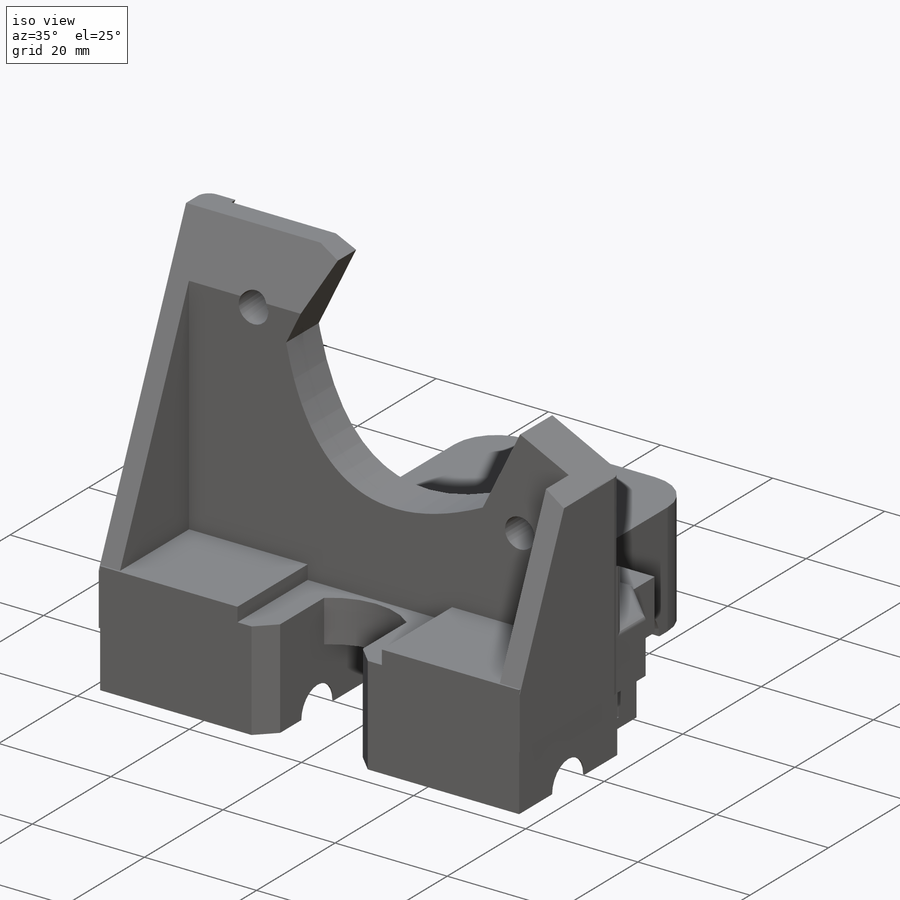
[diagram: iso view]
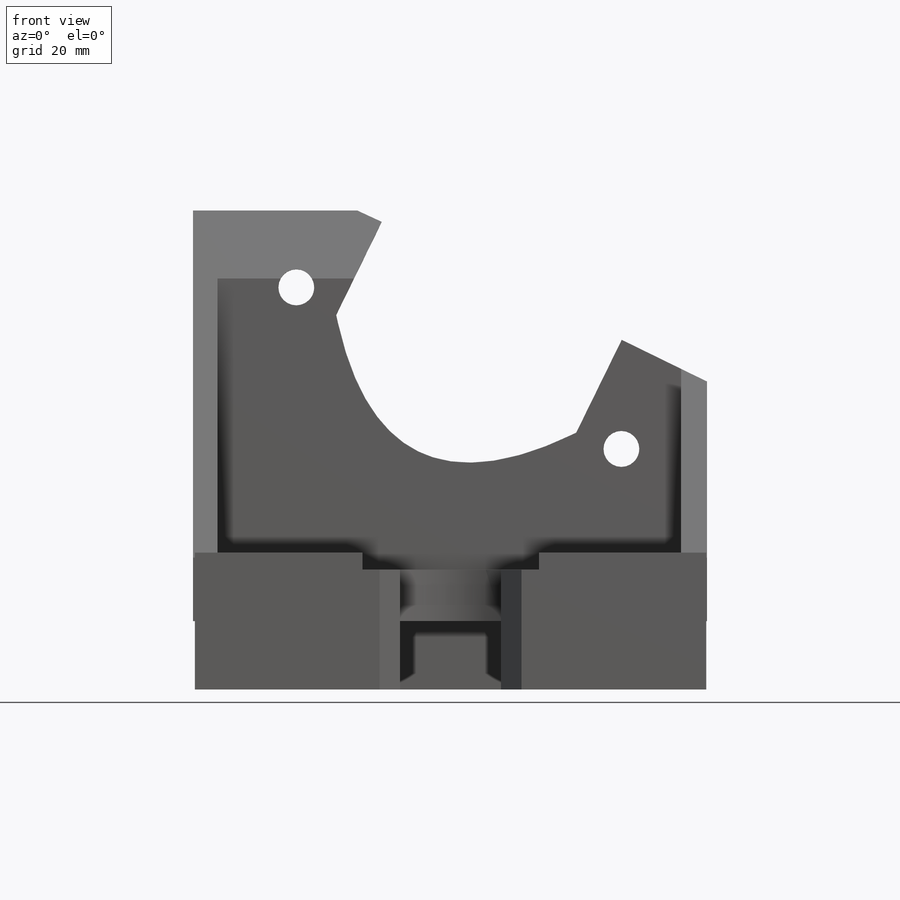
[diagram: front view]
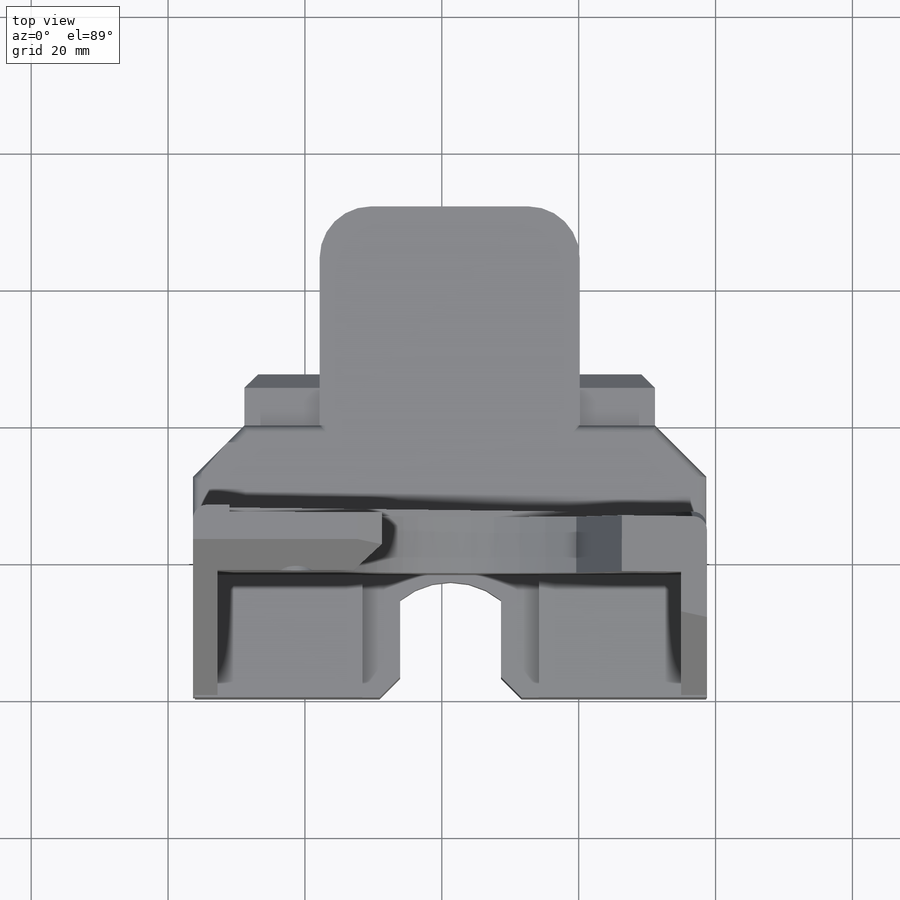
[diagram: top view]
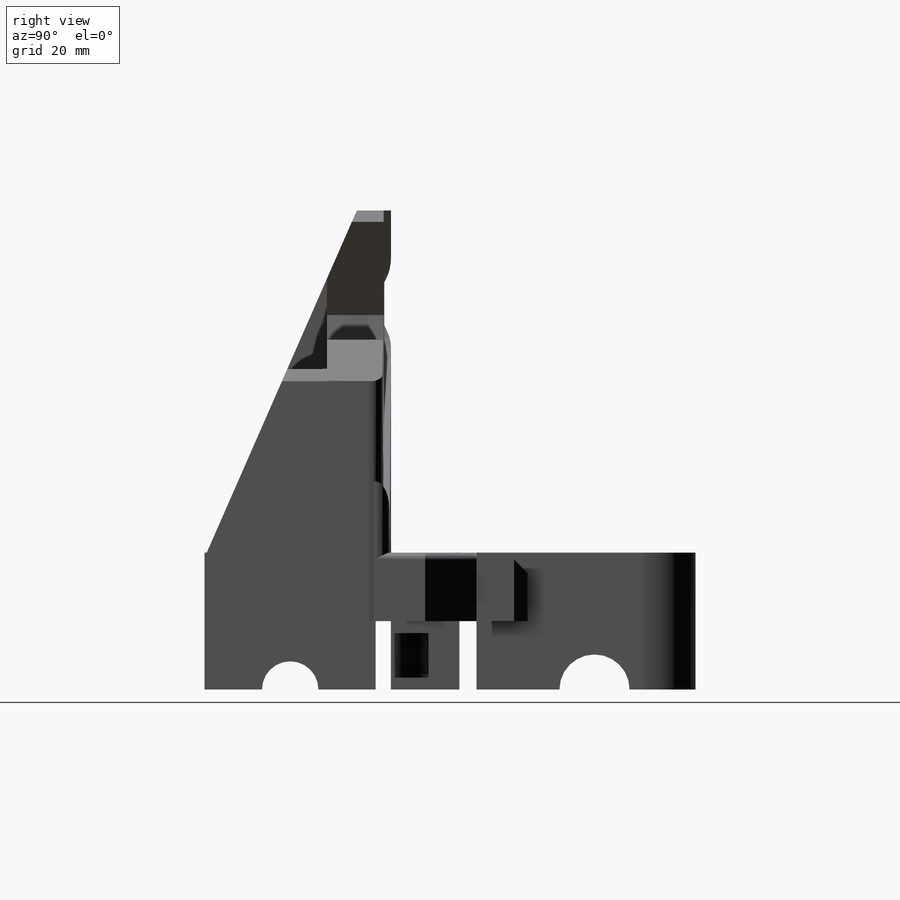
[diagram: right view]
SOLIDWORKS PART (.sldprt)
format: sldprt  version: not decoded by parser v0  size: 1,210,368 bytes
history: native  units: mm
features: sketch x35, cut_extrude x17, extrude x12, fillet x6, cut_revolve x6, chamfer x3, material x1 (+13 scaffold rows collapsed)
feature tree (93):
  scaffold x13  (default folders/planes/origin — collapsed)
  material  "Material <not specified>"
  sketch  "Sketch1"  dims[c1.D1=75.0mm c1.D2=86.0mm c1.D3=38.0mm c1.D4=19.0mm c1.D5=18.0mm c2.D4=18.5mm c2.D5=18.5mm]
  extrude  "Boss-Extrude1"  Depth=10mm
  sketch  "Sketch2"  dims[c1.D7=5.25mm c1.D8=5.25mm c1.D9=5.25mm c1.D10=5.25mm c1.D1=40.0mm c1.D2=35.0mm c1.D3=1.5mm c1.D4=5.5mm c1.D5=7.0mm c1.D6=7.0mm c2.D7=5.5mm c2.D11=1.0mm]
  cut_extrude  "Cut-Extrude1"  [1 undecoded]
  sketch  "Sketch5"  dims[c1.D17=5.25mm c1.D18=5.25mm c1.D19=5.25mm c1.D20=5.25mm c1.D1=3.0mm c1.D2=1.0mm c1.D3=~23.226521mm c2.D2=40.0mm c2.D3=40.0mm c2.D4=3.0mm c2.D5=35.0mm c2.D6=35.0mm c2.D7=1.0mm c2.D8=1.0mm c2.D9=5.5mm c2.D10=5.5mm c2.D11=5.5mm c2.D12=5.5mm c2.D13=7.0mm c2.D14=7.0mm c2.D15=7.0mm c2.D16=7.0mm]
  cut_extrude  "Cut-Extrude2"  [1 undecoded]
  sketch  "Sketch7"
  extrude  "Boss-Extrude2"  Depth=50mm
  sketch  "Sketch8"  dims[D1=10.0mm D2=10.0mm D3=80.0mm D4=28.5mm]
  cut_extrude  "Cut-Extrude3"  Depth=1mm
  sketch  "Sketch9"  dims[c1.D5=5.25mm c1.D6=5.25mm c1.D8=20.0mm c1.D1=9.0mm c1.D2=9.0mm c2.D1=9.0mm c2.D2=14.0mm c2.D3=9.0mm c2.D4=14.0mm c2.D7=25.0mm c2.D8=~25.154457mm c2.D9=62.0mm c3.D3=9.0mm c3.D1=25.0mm c3.D2=~27.933534mm]
  cut_extrude  "Cut-Extrude4"  [1 undecoded]
  chamfer  "Chamfer1"  Distance=7.5mm Angle=45deg
  fillet  "Fillet3"  Radius=1mm
  sketch  "Sketch15"  dims[D1=8.5mm D2=8.5mm D3=8.5mm D4=8.5mm D5=8.5mm D6=8.5mm D7=8.5mm D8=8.5mm D9=8.5mm D10=8.5mm D11=8.5mm D12=8.5mm]
  cut_extrude  "Cut-Extrude9"  Depth=3mm
  sketch  "Sketch16"  dims[D1=15.0mm]
  extrude  "Boss-Extrude6"  Depth=11mm
  sketch  "Sketch17"  dims[D1=15.0mm]
  extrude  "Boss-Extrude9"  Depth=11mm
  sketch  "Sketch21"  dims[D1=6.0mm D2=3.0mm D3=3.0mm D4=3.0mm D5=3.0mm D6=3.0mm D7=6.0mm D8=3.0mm]
  cut_extrude  "Cut-Extrude11"  Depth=7mm
  sketch  "Sketch22"  dims[D2=3.2mm D3=3.2mm D1=3.5mm D4=5.0mm D5=5.0mm]
  cut_extrude  "Cut-Extrude12"  Depth=10mm
  sketch  "Sketch23"  dims[D1=7.0mm D2=7.0mm]
  cut_extrude  "Cut-Extrude15"  Depth=10mm
  sketch  "Sketch24"
  cut_extrude  "Cut-Extrude16"  Depth=10mm
  sketch  "Sketch25"
  extrude  "Boss-Extrude10"  [1 undecoded]
  sketch  "Sketch26"
  extrude  "Boss-Extrude11"  [1 undecoded]
  sketch  "Sketch28"  dims[D1=5.0mm]
  cut_extrude  "Cut-Extrude17"  [1 undecoded]
  sketch  "Sketch29"
  extrude  "Boss-Extrude12"  [1 undecoded]
  sketch  "Sketch31"  dims[c1.D1=~3.100789mm c1.D5=3.05mm c1.D6=3.05mm c1.D7=23.0mm c2.D1=2.5mm c2.D2=2.5mm c2.D3=2.5mm c2.D4=2.5mm]
  cut_extrude  "Cut-Extrude19"  Depth=10mm
  fillet  "Fillet4"  Radius=5mm
  sketch  "Sketch33"
  extrude  "Boss-Extrude13"  Depth=20mm
  sketch  "Sketch34"  dims[c1.D1=12.0mm c1.D2=12.3mm c1.D3=~17.904762mm c2.D1=15.1mm c2.D2=29.5mm c3.D1=14.75mm c3.D3=9.75mm c3.D4=7.5mm]
  cut_revolve  "Cut-Revolve1"  Angle=360deg
  sketch  "Sketch35"  dims[D1=10.25mm]
  cut_extrude  "Cut-Extrude22"  Depth=15mm
  sketch  "Sketch36"  dims[D1=12.0mm D2=5.0mm D3=2.0mm D4=12.0mm]
  cut_revolve  "Cut-Revolve2"  Angle=360deg
  sketch  "Sketch37"  dims[c1.D1=20.0mm c1.D2=~25.691455mm c2.D2=~4.888616deg c3.D2=20.0mm c3.D3=45.0mm c3.D4=20.0mm c4.D4=~0.760831deg c5.D4=10.0mm c5.D1=12.5mm c5.D2=30.0mm]
  extrude  "Boss-Extrude14"  Depth=20mm
  sketch  "Sketch38"
  extrude  "Boss-Extrude15"  [1 undecoded]
  sketch  "Sketch39"  dims[D1=29.5mm D2=0.25mm D3=9.625mm]
  cut_revolve  "Cut-Revolve3"  Angle=360deg
  sketch  "Sketch40"  dims[D1=5.0mm D2=1.2mm D3=10.5mm]
  cut_revolve  "Cut-Revolve4"  Angle=360deg
  sketch  "Sketch41"  dims[D1=8.25mm]
  sketch  "Sketch48"
  cut_extrude  "Cut-Extrude25"  Depth=20.1mm
  cut_extrude  "Cut-Extrude23"  Depth=20mm
  sketch  "Sketch42"  dims[D1=10.0mm D2=15.0mm]
  extrude  "Boss-Extrude16"  Depth=10mm
  sketch  "Sketch43"  dims[D1=6.5mm D2=5.0mm D3=7.0mm D4=7.0mm]
  cut_revolve  "Cut-Revolve5"  Angle=360deg
  sketch  "Sketch44"  dims[D1=7.0mm D2=6.5mm D3=5.0mm]
  cut_revolve  "Cut-Revolve6"  Angle=360deg
  sketch  "Sketch45"  dims[D1=5.0mm]
  cut_extrude  "Cut-Extrude24"  [1 undecoded]
  sketch  "Sketch46"
  extrude  "Boss-Extrude17"  Depth=0.1mm
  sketch  "Sketch32"
  cut_extrude  "Cut-Extrude20"  Depth=5mm
  fillet  "Fillet5"  Radius=7.5mm
  fillet  "Fillet6"  Radius=2mm
  fillet  "Fillet7"  Radius=2mm
  fillet  "Fillet8"  Radius=2mm
  chamfer  "Chamfer2"  Distance=2mm Angle=45deg
  chamfer  "Chamfer3"  Distance=3mm Angle=45deg
  sketch  "Sketch49"
  cut_extrude  "Cut-Extrude27"  [1 undecoded]
decode coverage: 58 of 79 modeling features carry decoded parameters
note: ~ marks probable driven/reference dimensions
note: 10 parameter values undecoded
summary: no parameter record found for 10 features
note: suppression state not decoded; provenance and decode notes live in map.json
